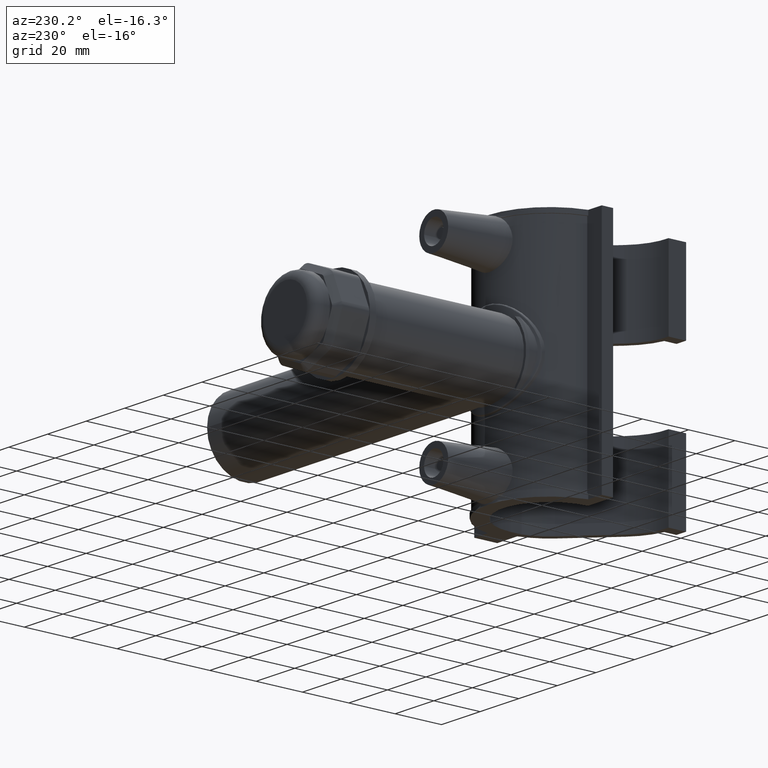
[diagram: clean part render]
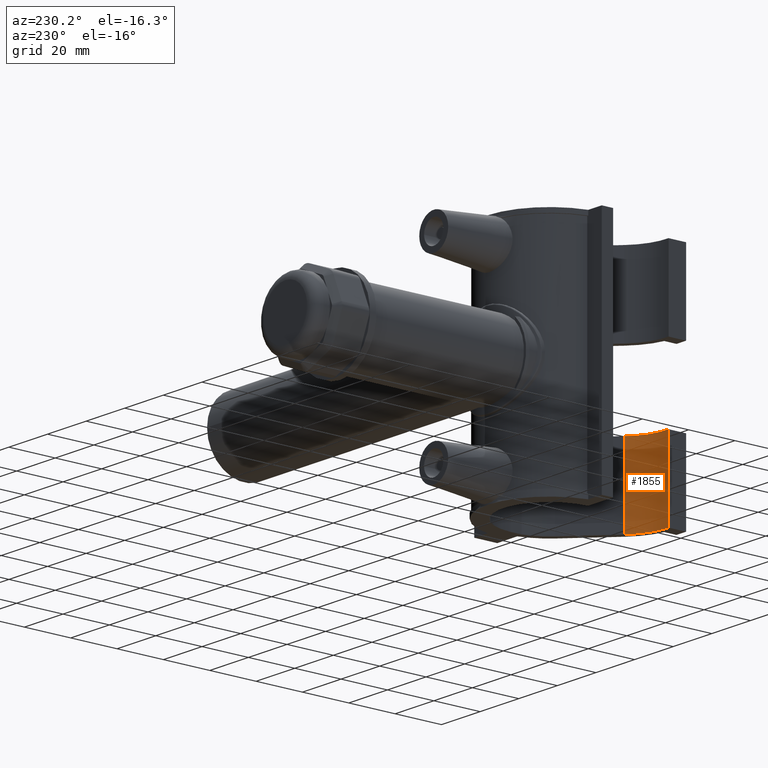
[diagram: same view with one face highlighted and labeled with its STEP entity id]
A machine part, auxiliary view. The second image highlights one B-rep face of the part: STEP entity #1855.
In plain terms, the highlighted cylindrical surface (partial cylindrical patch) has radius 20.525 mm, axis along (0, 0, -1).
Its self-contained STEP definition (entity closure, byte-faithful):
#156=CIRCLE('',#2041,20.5250332296427);
#162=CIRCLE('',#2050,20.5250332296427);
#196=CYLINDRICAL_SURFACE('',#2049,20.5250332296427);
#292=FACE_OUTER_BOUND('',#426,.T.);
#426=EDGE_LOOP('',(#1592,#1593,#1594,#1595));
#555=LINE('',#3622,#700);
#556=LINE('',#3626,#701);
#700=VECTOR('',#2528,34.);
#701=VECTOR('',#2533,34.);
#877=VERTEX_POINT('',#3594);
#879=VERTEX_POINT('',#3597);
#888=VERTEX_POINT('',#3620);
#889=VERTEX_POINT('',#3624);
#1117=EDGE_CURVE('',#879,#877,#156,.T.);
#1130=EDGE_CURVE('',#877,#888,#555,.T.);
#1131=EDGE_CURVE('',#889,#888,#162,.T.);
#1132=EDGE_CURVE('',#879,#889,#556,.T.);
#1592=ORIENTED_EDGE('',*,*,#1117,.T.);
#1593=ORIENTED_EDGE('',*,*,#1130,.T.);
#1594=ORIENTED_EDGE('',*,*,#1131,.F.);
#1595=ORIENTED_EDGE('',*,*,#1132,.F.);
#1855=ADVANCED_FACE('',(#292),#196,.F.);
#2041=AXIS2_PLACEMENT_3D('',#3598,#2505,#2506);
#2049=AXIS2_PLACEMENT_3D('',#3623,#2529,#2530);
#2050=AXIS2_PLACEMENT_3D('',#3625,#2531,#2532);
#2505=DIRECTION('center_axis',(6.8691545148979E-16,6.86915449858513E-16,
1.));
#2506=DIRECTION('ref_axis',(0.0510619534309793,0.998695487579579,0.));
#2528=DIRECTION('',(0.,0.,-1.));
#2529=DIRECTION('center_axis',(0.,0.,-1.));
#2530=DIRECTION('ref_axis',(0.0510619534309793,0.998695487579579,0.));
#2531=DIRECTION('center_axis',(0.,0.,1.));
#2532=DIRECTION('ref_axis',(0.0510619534309793,0.998695487579579,0.));
#2533=DIRECTION('',(0.,0.,-1.));
#3594=CARTESIAN_POINT('',(-1.83848654541503,-30.8652668681019,-16.));
#3597=CARTESIAN_POINT('',(-17.3999249998828,-36.8501347389743,-16.));
#3598=CARTESIAN_POINT('Origin',(-16.3518767089415,-16.3518766701093,-16.));
#3620=CARTESIAN_POINT('',(-1.83848654541503,-30.8652668681019,-50.));
#3622=CARTESIAN_POINT('',(-1.83848654541503,-30.8652668681019,50.));
#3623=CARTESIAN_POINT('Origin',(-16.3518767089415,-16.3518766701093,50.));
#3624=CARTESIAN_POINT('',(-17.3999249998828,-36.8501347389743,-50.));
#3625=CARTESIAN_POINT('Origin',(-16.3518767089415,-16.3518766701093,-50.));
#3626=CARTESIAN_POINT('',(-17.3999249998828,-36.8501347389743,50.));